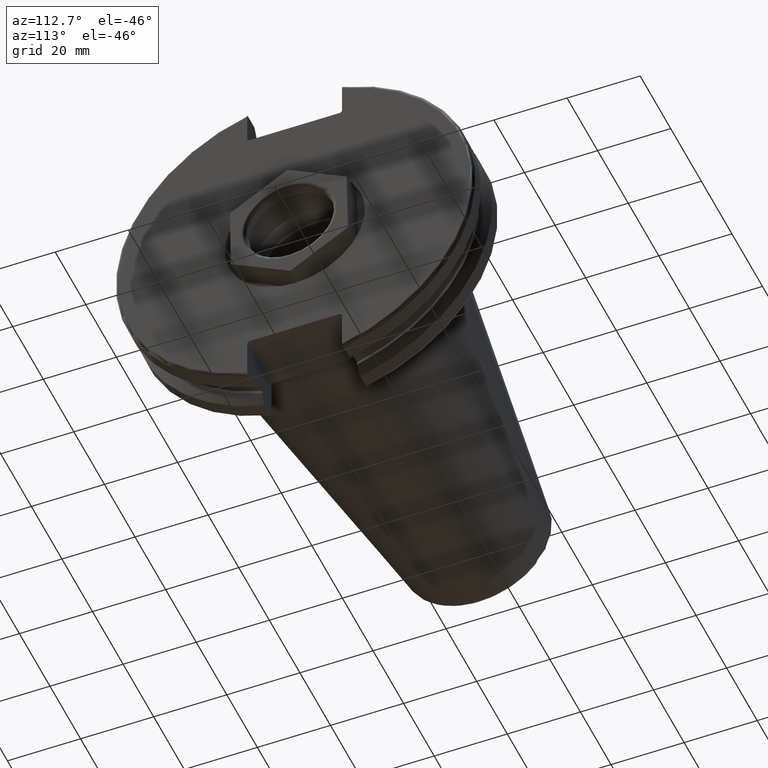
[diagram: clean part render]
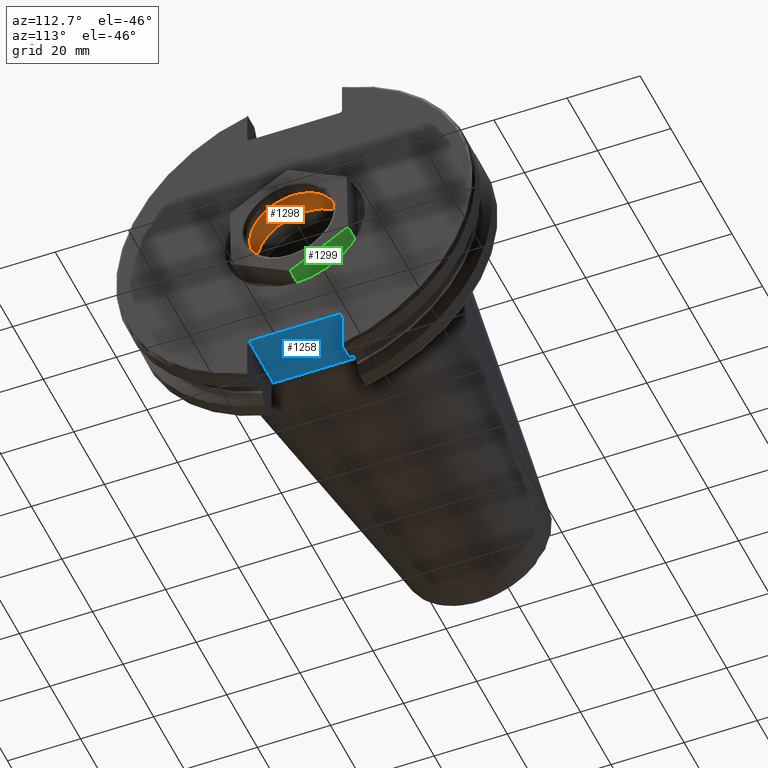
[diagram: same view with three faces highlighted in distinct colors, each labeled with its STEP entity id]
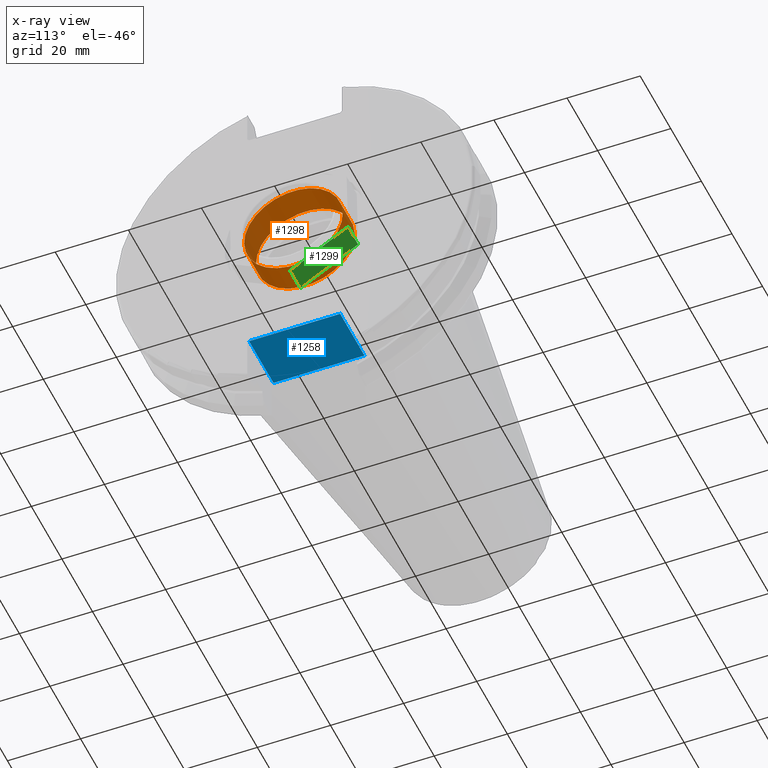
[diagram: x-ray of the same camera — body ghosted, the three highlighted faces saturated]
A machine part, auxiliary view with three faces highlighted in distinct colors.
The next image is the same camera in x-ray (body ghosted, the three faces saturated) — at least one of them is partly hidden behind the body in this view.
Their STEP definitions:

[orange] entity #1298 — the highlighted cylindrical surface (bore or boss wall) has radius 13.5 mm, axis along (-1, 0, 0).
#198=FACE_OUTER_BOUND('',#285,.T.);
#285=EDGE_LOOP('',(#1186,#1187,#1188,#1189));
#377=LINE('',#2384,#469);
#469=VECTOR('',#1861,13.5);
#530=CIRCLE('',#1489,13.5);
#536=CIRCLE('',#1500,13.5);
#646=VERTEX_POINT('',#2348);
#658=VERTEX_POINT('',#2381);
#820=EDGE_CURVE('',#646,#646,#530,.T.);
#836=EDGE_CURVE('',#658,#658,#536,.T.);
#837=EDGE_CURVE('',#658,#646,#377,.T.);
#1186=ORIENTED_EDGE('',*,*,#836,.F.);
#1187=ORIENTED_EDGE('',*,*,#837,.T.);
#1188=ORIENTED_EDGE('',*,*,#820,.T.);
#1189=ORIENTED_EDGE('',*,*,#837,.F.);
#1229=CYLINDRICAL_SURFACE('',#1501,13.5);
#1298=ADVANCED_FACE('',(#198),#1229,.F.);
#1489=AXIS2_PLACEMENT_3D('',#2349,#1825,#1826);
#1500=AXIS2_PLACEMENT_3D('',#2382,#1857,#1858);
#1501=AXIS2_PLACEMENT_3D('',#2383,#1859,#1860);
#1825=DIRECTION('center_axis',(-1.,0.,0.));
#1826=DIRECTION('ref_axis',(0.,0.,1.));
#1857=DIRECTION('center_axis',(-1.,0.,0.));
#1858=DIRECTION('ref_axis',(0.,0.,1.));
#1859=DIRECTION('center_axis',(-1.,0.,0.));
#1860=DIRECTION('ref_axis',(0.,1.,0.));
#1861=DIRECTION('',(-1.,0.,0.));
#2348=CARTESIAN_POINT('',(-4.2,-13.5,1.65327317884893E-15));
#2349=CARTESIAN_POINT('Origin',(-4.2,0.,0.));
#2381=CARTESIAN_POINT('',(3.6,-13.5,1.65327317884893E-15));
#2382=CARTESIAN_POINT('Origin',(3.6,0.,0.));
#2383=CARTESIAN_POINT('Origin',(-0.299999999999998,0.,0.));
#2384=CARTESIAN_POINT('',(-0.299999999999998,-13.5,1.65327317884893E-15));

[blue] entity #1258 — the highlighted planar face has unit normal (0, 0, 1).
#93=PLANE('',#1428);
#158=FACE_OUTER_BOUND('',#239,.T.);
#239=EDGE_LOOP('',(#1002,#1003,#1004,#1005));
#304=LINE('',#1946,#396);
#323=LINE('',#2043,#415);
#341=LINE('',#2214,#433);
#342=LINE('',#2216,#434);
#396=VECTOR('',#1576,10.);
#415=VECTOR('',#1613,10.);
#433=VECTOR('',#1677,10.);
#434=VECTOR('',#1680,10.);
#558=VERTEX_POINT('',#1943);
#559=VERTEX_POINT('',#1945);
#584=VERTEX_POINT('',#2040);
#585=VERTEX_POINT('',#2042);
#686=EDGE_CURVE('',#558,#559,#304,.T.);
#717=EDGE_CURVE('',#584,#585,#323,.T.);
#763=EDGE_CURVE('',#585,#558,#341,.T.);
#764=EDGE_CURVE('',#559,#584,#342,.T.);
#1002=ORIENTED_EDGE('',*,*,#763,.F.);
#1003=ORIENTED_EDGE('',*,*,#717,.F.);
#1004=ORIENTED_EDGE('',*,*,#764,.F.);
#1005=ORIENTED_EDGE('',*,*,#686,.F.);
#1258=ADVANCED_FACE('',(#158),#93,.F.);
#1428=AXIS2_PLACEMENT_3D('',#2215,#1678,#1679);
#1576=DIRECTION('',(0.,-1.,0.));
#1613=DIRECTION('',(0.,1.,0.));
#1677=DIRECTION('',(-1.,2.63163976207444E-16,0.));
#1678=DIRECTION('center_axis',(0.,0.,1.));
#1679=DIRECTION('ref_axis',(1.,0.,0.));
#1680=DIRECTION('',(1.,2.63163976207445E-16,0.));
#1943=CARTESIAN_POINT('',(3.175,12.45,-35.306));
#1945=CARTESIAN_POINT('',(3.175,-12.45,-35.306));
#1946=CARTESIAN_POINT('',(3.175,24.60625,-35.306));
#2040=CARTESIAN_POINT('',(19.05,-12.45,-35.306));
#2042=CARTESIAN_POINT('',(19.05,12.45,-35.306));
#2043=CARTESIAN_POINT('',(19.05,-3.33066907387547E-15,-35.306));
#2214=CARTESIAN_POINT('',(10.63125,12.45,-35.306));
#2215=CARTESIAN_POINT('Origin',(18.0875,-6.66133814775094E-15,-35.306));
#2216=CARTESIAN_POINT('',(19.06875,-12.45,-35.306));

[green] entity #1299 — the highlighted planar face has unit normal (0, 0.5171, -0.8559).
#112=PLANE('',#1502);
#199=FACE_OUTER_BOUND('',#286,.T.);
#286=EDGE_LOOP('',(#1190,#1191,#1192,#1193));
#366=LINE('',#2335,#458);
#371=LINE('',#2370,#463);
#378=LINE('',#2386,#470);
#379=LINE('',#2387,#471);
#458=VECTOR('',#1808,10.);
#463=VECTOR('',#1849,10.);
#470=VECTOR('',#1864,10.);
#471=VECTOR('',#1865,10.);
#636=VERTEX_POINT('',#2324);
#641=VERTEX_POINT('',#2333);
#652=VERTEX_POINT('',#2368);
#653=VERTEX_POINT('',#2369);
#814=EDGE_CURVE('',#641,#636,#366,.T.);
#830=EDGE_CURVE('',#652,#653,#371,.T.);
#838=EDGE_CURVE('',#652,#636,#378,.T.);
#839=EDGE_CURVE('',#653,#641,#379,.T.);
#1190=ORIENTED_EDGE('',*,*,#830,.F.);
#1191=ORIENTED_EDGE('',*,*,#838,.T.);
#1192=ORIENTED_EDGE('',*,*,#814,.F.);
#1193=ORIENTED_EDGE('',*,*,#839,.F.);
#1299=ADVANCED_FACE('',(#199),#112,.T.);
#1502=AXIS2_PLACEMENT_3D('',#2385,#1862,#1863);
#1808=DIRECTION('',(0.,0.866025403784439,0.5));
#1849=DIRECTION('',(0.,-0.866025403784439,-0.5));
#1862=DIRECTION('center_axis',(0.,0.5,-0.866025403784439));
#1863=DIRECTION('ref_axis',(0.,0.866025403784439,0.5));
#1864=DIRECTION('',(1.,0.,0.));
#1865=DIRECTION('',(1.,0.,0.));
#2324=CARTESIAN_POINT('',(6.6,16.,-9.23760430703402));
#2333=CARTESIAN_POINT('',(6.6,0.,-18.475208614068));
#2335=CARTESIAN_POINT('',(6.6,0.,-18.475208614068));
#2368=CARTESIAN_POINT('',(1.11022302462516E-15,16.,-9.23760430703402));
#2369=CARTESIAN_POINT('',(1.11022302462516E-15,-4.4030870386767E-17,-18.475208614068));
#2370=CARTESIAN_POINT('',(1.11022302462516E-15,4.,-16.1658075373095));
#2385=CARTESIAN_POINT('Origin',(1.11022302462516E-15,-3.30231527900753E-17,
-18.475208614068));
#2386=CARTESIAN_POINT('',(1.11022302462516E-15,16.,-9.23760430703402));
#2387=CARTESIAN_POINT('',(1.11022302462516E-15,-4.4030870386767E-17,-18.475208614068));